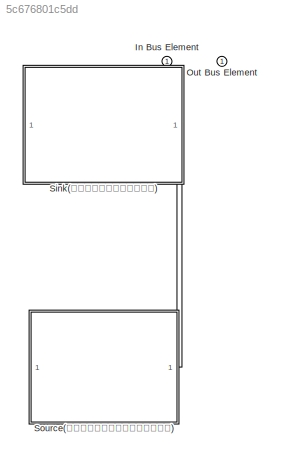
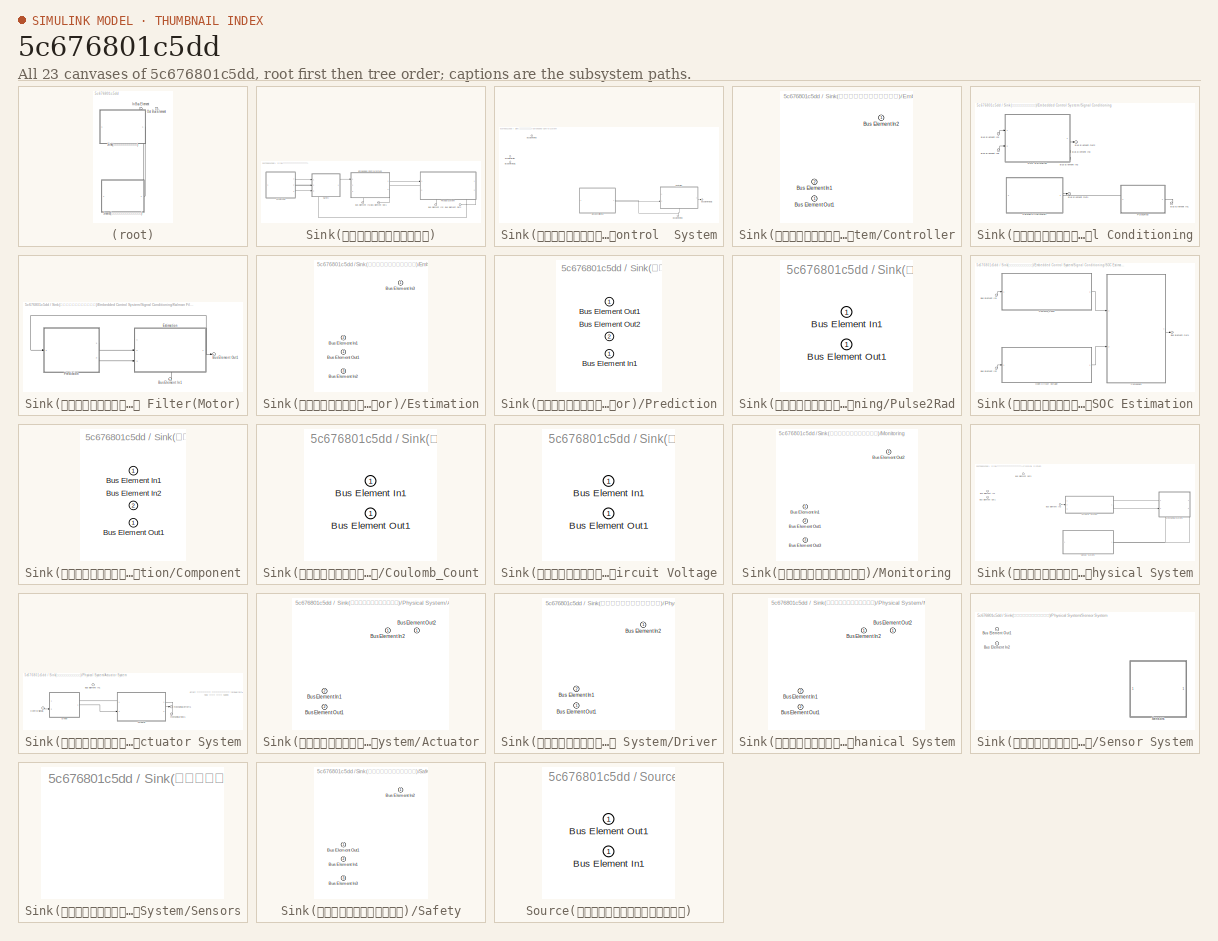
[diagram: thumbnail index - all 23 canvases of the model, root first then tree order]
MODEL slx_5c676801c5dd
KIND model
CONFIG AbsTol = auto
CONFIG EnableMultiTasking = off
CONFIG FixedStep = auto
CONFIG MaxStep = auto
CONFIG MinStep = auto
CONFIG RelTol = 1e-3
CONFIG SampleTimeConstraint = Unconstrained
CONFIG SolverName = VariableStepAuto
CONFIG StartTime = 0.0
CONFIG StopTime = 10.0
BLOCK [Inport] In Bus Element
BLOCK [Outport] Out Bus Element
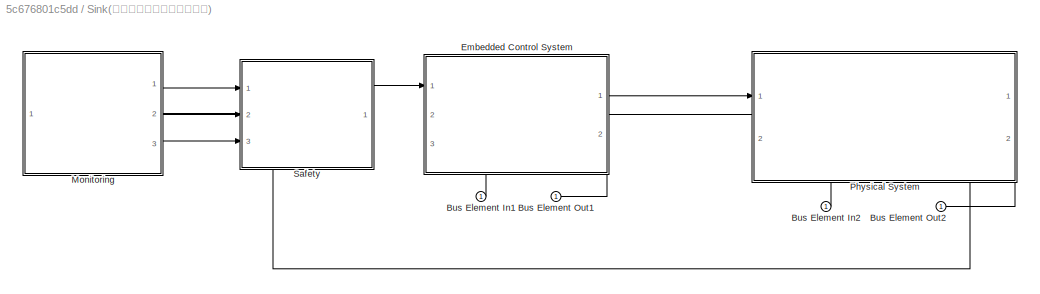
BLOCK [SubSystem] Sink(ดูดพลังงานมา)
  PortSchema = {"entries":[{"content":{"headerSize":26,"margin":15,"minimumSpacing":25,"sides":[{"content":{"connectorIds":[]},"type":"ConnectorPlacement.EquallySpacedRectSide","uuid":"92879829-3325-4e99-8cb7-644760838beb"},{"content":{"connectorIds":[],"side":"RIGHT"},"type":"ConnectorPlacement.EquallySpacedRectSide","uuid":"7f28acab-39b7-45d1-ae7e-3b59846b890e"},{"content":{"connectorIds":[],"side":"TOP"},"typ...<+433ch>
  Ports = [1, 1]
  RequestExecContextInheritance = off
BLOCK [Inport] Sink(ดูดพลังงานมา)/Bus Element In1
BLOCK [Inport] Sink(ดูดพลังงานมา)/Bus Element In2
BLOCK [Outport] Sink(ดูดพลังงานมา)/Bus Element Out1
BLOCK [Outport] Sink(ดูดพลังงานมา)/Bus Element Out2
BLOCK [SubSystem] Sink(ดูดพลังงานมา)/Embedded Control  System
  PortSchema = {"entries":[{"content":{"headerSize":26,"margin":15,"minimumSpacing":25,"sides":[{"content":{"connectorIds":["In1"]},"type":"ConnectorPlacement.EquallySpacedRectSide","uuid":"92879829-3325-4e99-8cb7-644760838beb"},{"content":{"connectorIds":["Out1","In2"],"side":"RIGHT"},"type":"ConnectorPlacement.EquallySpacedRectSide","uuid":"7f28acab-39b7-45d1-ae7e-3b59846b890e"},{"content":{"connectorIds":[],"...<+450ch>
  Ports = [3, 2]
  RequestExecContextInheritance = off
BLOCK [Inport] Sink(ดูดพลังงานมา)/Embedded Control  System/Bus Element In1
  Port = 3
BLOCK [Inport] Sink(ดูดพลังงานมา)/Embedded Control  System/Bus Element In2
  Port = 2
BLOCK [Inport] Sink(ดูดพลังงานมา)/Embedded Control  System/Bus Element In3
BLOCK [Outport] Sink(ดูดพลังงานมา)/Embedded Control  System/Bus Element Out1
  Port = 2
BLOCK [Outport] Sink(ดูดพลังงานมา)/Embedded Control  System/Bus Element Out2
BLOCK [SubSystem] Sink(ดูดพลังงานมา)/Embedded Control  System/Controller
  PortSchema = {"entries":[{"content":{"headerSize":26,"margin":15,"minimumSpacing":25,"sides":[{"content":{"connectorIds":["In2"]},"type":"ConnectorPlacement.EquallySpacedRectSide","uuid":"ceb52414-35d0-489d-844f-0240986ed89c"},{"content":{"connectorIds":["Out1"],"side":"RIGHT"},"type":"ConnectorPlacement.EquallySpacedRectSide","uuid":"3638cfe4-de14-450c-b813-3d39c139d6c7"},{"content":{"connectorIds":[],"side":...<+437ch>
  Ports = [2, 1]
  RequestExecContextInheritance = off
BLOCK [Inport] Sink(ดูดพลังงานมา)/Embedded Control  System/Controller/Bus Element In1
  Port = 2
BLOCK [Inport] Sink(ดูดพลังงานมา)/Embedded Control  System/Controller/Bus Element In2
BLOCK [Outport] Sink(ดูดพลังงานมา)/Embedded Control  System/Controller/Bus Element Out1
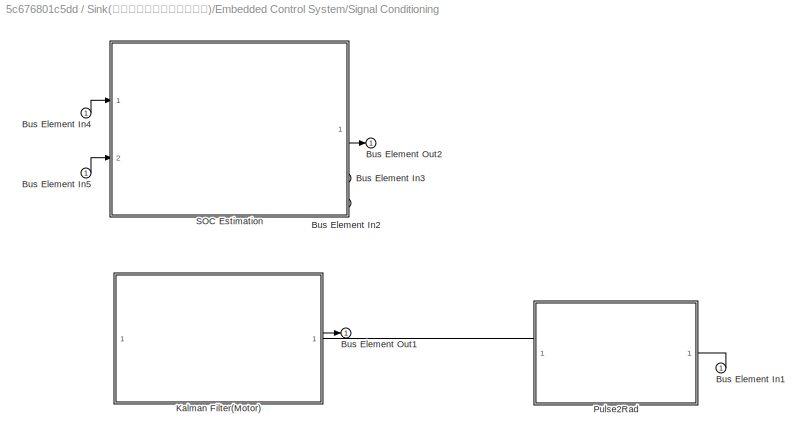
BLOCK [SubSystem] Sink(ดูดพลังงานมา)/Embedded Control  System/Signal Conditioning
  PortSchema = {"entries":[{"content":{"headerSize":26,"margin":15,"minimumSpacing":25,"sides":[{"content":{"connectorIds":[]},"type":"ConnectorPlacement.EquallySpacedRectSide","uuid":"ec34c04b-13ec-405c-8aad-0b7c99871b48"},{"content":{"connectorIds":["Out1","In1"],"side":"RIGHT"},"type":"ConnectorPlacement.EquallySpacedRectSide","uuid":"74d376a0-546b-4ab2-965b-dd49f4bea425"},{"content":{"connectorIds":[],"side"...<+289ch>
  Ports = [1, 1]
  RequestExecContextInheritance = off
BLOCK [Inport] Sink(ดูดพลังงานมา)/Embedded Control  System/Signal Conditioning/Bus Element In1
BLOCK [Inport] Sink(ดูดพลังงานมา)/Embedded Control  System/Signal Conditioning/Bus Element In2
BLOCK [Inport] Sink(ดูดพลังงานมา)/Embedded Control  System/Signal Conditioning/Bus Element In3
BLOCK [Inport] Sink(ดูดพลังงานมา)/Embedded Control  System/Signal Conditioning/Bus Element In4
BLOCK [Inport] Sink(ดูดพลังงานมา)/Embedded Control  System/Signal Conditioning/Bus Element In5
BLOCK [Outport] Sink(ดูดพลังงานมา)/Embedded Control  System/Signal Conditioning/Bus Element Out1
BLOCK [Outport] Sink(ดูดพลังงานมา)/Embedded Control  System/Signal Conditioning/Bus Element Out2
BLOCK [SubSystem] Sink(ดูดพลังงานมา)/Embedded Control  System/Signal Conditioning/Kalman Filter(Motor)
  PortSchema = {"entries":[{"content":{"headerSize":26,"margin":15,"minimumSpacing":25,"sides":[{"content":{"connectorIds":[]},"type":"ConnectorPlacement.EquallySpacedRectSide","uuid":"ec34c04b-13ec-405c-8aad-0b7c99871b48"},{"content":{"connectorIds":["Out1","In1"],"side":"RIGHT"},"type":"ConnectorPlacement.EquallySpacedRectSide","uuid":"74d376a0-546b-4ab2-965b-dd49f4bea425"},{"content":{"connectorIds":[],"side"...<+289ch>
  Ports = [1, 1]
  RequestExecContextInheritance = off
BLOCK [Inport] Sink(ดูดพลังงานมา)/Embedded Control  System/Signal Conditioning/Kalman Filter(Motor)/Bus Element In1
BLOCK [Outport] Sink(ดูดพลังงานมา)/Embedded Control  System/Signal Conditioning/Kalman Filter(Motor)/Bus Element Out1
BLOCK [SubSystem] Sink(ดูดพลังงานมา)/Embedded Control  System/Signal Conditioning/Kalman Filter(Motor)/Estimation
  PortSchema = {"entries":[{"content":{"headerSize":26,"margin":15,"minimumSpacing":25,"sides":[{"content":{"connectorIds":["In2","In3"]},"type":"ConnectorPlacement.EquallySpacedRectSide","uuid":"ec34c04b-13ec-405c-8aad-0b7c99871b48"},{"content":{"connectorIds":["Out1"],"side":"RIGHT"},"type":"ConnectorPlacement.EquallySpacedRectSide","uuid":"74d376a0-546b-4ab2-965b-dd49f4bea425"},{"content":{"connectorIds":[],"...<+443ch>
  Ports = [3, 1]
  RequestExecContextInheritance = off
BLOCK [Inport] Sink(ดูดพลังงานมา)/Embedded Control  System/Signal Conditioning/Kalman Filter(Motor)/Estimation/Bus Element In1
  Port = 2
BLOCK [Inport] Sink(ดูดพลังงานมา)/Embedded Control  System/Signal Conditioning/Kalman Filter(Motor)/Estimation/Bus Element In2
  Port = 3
BLOCK [Inport] Sink(ดูดพลังงานมา)/Embedded Control  System/Signal Conditioning/Kalman Filter(Motor)/Estimation/Bus Element In3
BLOCK [Outport] Sink(ดูดพลังงานมา)/Embedded Control  System/Signal Conditioning/Kalman Filter(Motor)/Estimation/Bus Element Out1
BLOCK [SubSystem] Sink(ดูดพลังงานมา)/Embedded Control  System/Signal Conditioning/Kalman Filter(Motor)/Prediction
  PortSchema = {"entries":[{"content":{"headerSize":26,"margin":15,"minimumSpacing":25,"sides":[{"content":{"connectorIds":["In1"]},"type":"ConnectorPlacement.EquallySpacedRectSide","uuid":"ec34c04b-13ec-405c-8aad-0b7c99871b48"},{"content":{"connectorIds":["Out1","Out2"],"side":"RIGHT"},"type":"ConnectorPlacement.EquallySpacedRectSide","uuid":"74d376a0-546b-4ab2-965b-dd49f4bea425"},{"content":{"connectorIds":[],...<+295ch>
  Ports = [1, 2]
  RequestExecContextInheritance = off
BLOCK [Inport] Sink(ดูดพลังงานมา)/Embedded Control  System/Signal Conditioning/Kalman Filter(Motor)/Prediction/Bus Element In1
BLOCK [Outport] Sink(ดูดพลังงานมา)/Embedded Control  System/Signal Conditioning/Kalman Filter(Motor)/Prediction/Bus Element Out1
BLOCK [Outport] Sink(ดูดพลังงานมา)/Embedded Control  System/Signal Conditioning/Kalman Filter(Motor)/Prediction/Bus Element Out2
  Port = 2
BLOCK [SubSystem] Sink(ดูดพลังงานมา)/Embedded Control  System/Signal Conditioning/Pulse2Rad
  PortSchema = {"entries":[{"content":{"headerSize":26,"margin":15,"minimumSpacing":25,"sides":[{"content":{"connectorIds":["Out1"]},"type":"ConnectorPlacement.EquallySpacedRectSide","uuid":"ec34c04b-13ec-405c-8aad-0b7c99871b48"},{"content":{"connectorIds":["In1"],"side":"RIGHT"},"type":"ConnectorPlacement.EquallySpacedRectSide","uuid":"74d376a0-546b-4ab2-965b-dd49f4bea425"},{"content":{"connectorIds":[],"side":...<+432ch>
  Ports = [1, 1]
  RequestExecContextInheritance = off
BLOCK [Inport] Sink(ดูดพลังงานมา)/Embedded Control  System/Signal Conditioning/Pulse2Rad/Bus Element In1
BLOCK [Outport] Sink(ดูดพลังงานมา)/Embedded Control  System/Signal Conditioning/Pulse2Rad/Bus Element Out1
BLOCK [SubSystem] Sink(ดูดพลังงานมา)/Embedded Control  System/Signal Conditioning/SOC Estimation
  PortSchema = {"entries":[{"content":{"headerSize":26,"margin":15,"minimumSpacing":25,"sides":[{"content":{"connectorIds":["In1","In2"]},"type":"ConnectorPlacement.EquallySpacedRectSide","uuid":"981ec522-52a0-4dbf-ac20-b0bdc6aa1afd"},{"content":{"connectorIds":["Out1"],"side":"RIGHT"},"type":"ConnectorPlacement.EquallySpacedRectSide","uuid":"9bffbeba-24b3-4025-8564-8c4b0e924e04"},{"content":{"connectorIds":[],"...<+294ch>
  Ports = [2, 1]
  RequestExecContextInheritance = off
BLOCK [Inport] Sink(ดูดพลังงานมา)/Embedded Control  System/Signal Conditioning/SOC Estimation/Bus Element In1
BLOCK [Inport] Sink(ดูดพลังงานมา)/Embedded Control  System/Signal Conditioning/SOC Estimation/Bus Element In2
  Port = 2
BLOCK [Outport] Sink(ดูดพลังงานมา)/Embedded Control  System/Signal Conditioning/SOC Estimation/Bus Element Out1
BLOCK [SubSystem] Sink(ดูดพลังงานมา)/Embedded Control  System/Signal Conditioning/SOC Estimation/Component
  PortSchema = {"entries":[{"content":{"headerSize":26,"margin":15,"minimumSpacing":25,"sides":[{"content":{"connectorIds":["In1","In2"]},"type":"ConnectorPlacement.EquallySpacedRectSide","uuid":"981ec522-52a0-4dbf-ac20-b0bdc6aa1afd"},{"content":{"connectorIds":["Out1"],"side":"RIGHT"},"type":"ConnectorPlacement.EquallySpacedRectSide","uuid":"9bffbeba-24b3-4025-8564-8c4b0e924e04"},{"content":{"connectorIds":[],"...<+294ch>
  Ports = [2, 1]
  RequestExecContextInheritance = off
BLOCK [Inport] Sink(ดูดพลังงานมา)/Embedded Control  System/Signal Conditioning/SOC Estimation/Component/Bus Element In1
BLOCK [Inport] Sink(ดูดพลังงานมา)/Embedded Control  System/Signal Conditioning/SOC Estimation/Component/Bus Element In2
  Port = 2
BLOCK [Outport] Sink(ดูดพลังงานมา)/Embedded Control  System/Signal Conditioning/SOC Estimation/Component/Bus Element Out1
BLOCK [SubSystem] Sink(ดูดพลังงานมา)/Embedded Control  System/Signal Conditioning/SOC Estimation/Coulomb_Count
  PortSchema = {"entries":[{"content":{"headerSize":26,"margin":15,"minimumSpacing":25,"sides":[{"content":{"connectorIds":["In1"]},"type":"ConnectorPlacement.EquallySpacedRectSide","uuid":"981ec522-52a0-4dbf-ac20-b0bdc6aa1afd"},{"content":{"connectorIds":["Out1"],"side":"RIGHT"},"type":"ConnectorPlacement.EquallySpacedRectSide","uuid":"9bffbeba-24b3-4025-8564-8c4b0e924e04"},{"content":{"connectorIds":[],"side":...<+288ch>
  Ports = [1, 1]
  RequestExecContextInheritance = off
BLOCK [Inport] Sink(ดูดพลังงานมา)/Embedded Control  System/Signal Conditioning/SOC Estimation/Coulomb_Count/Bus Element In1
BLOCK [Outport] Sink(ดูดพลังงานมา)/Embedded Control  System/Signal Conditioning/SOC Estimation/Coulomb_Count/Bus Element Out1
BLOCK [SubSystem] Sink(ดูดพลังงานมา)/Embedded Control  System/Signal Conditioning/SOC Estimation/Open Circuit Voltage
  PortSchema = {"entries":[{"content":{"headerSize":26,"margin":15,"minimumSpacing":25,"sides":[{"content":{"connectorIds":["In1"]},"type":"ConnectorPlacement.EquallySpacedRectSide","uuid":"981ec522-52a0-4dbf-ac20-b0bdc6aa1afd"},{"content":{"connectorIds":["Out1"],"side":"RIGHT"},"type":"ConnectorPlacement.EquallySpacedRectSide","uuid":"9bffbeba-24b3-4025-8564-8c4b0e924e04"},{"content":{"connectorIds":[],"side":...<+288ch>
  Ports = [1, 1]
  RequestExecContextInheritance = off
BLOCK [Inport] Sink(ดูดพลังงานมา)/Embedded Control  System/Signal Conditioning/SOC Estimation/Open Circuit Voltage/Bus Element In1
BLOCK [Outport] Sink(ดูดพลังงานมา)/Embedded Control  System/Signal Conditioning/SOC Estimation/Open Circuit Voltage/Bus Element Out1
BLOCK [SubSystem] Sink(ดูดพลังงานมา)/Monitoring
  PortSchema = {"entries":[{"content":{"headerSize":26,"margin":15,"minimumSpacing":25,"sides":[{"content":{"connectorIds":["In1"]},"type":"ConnectorPlacement.EquallySpacedRectSide","uuid":"92879829-3325-4e99-8cb7-644760838beb"},{"content":{"connectorIds":["Out1","Out2","Out3"],"side":"RIGHT"},"type":"ConnectorPlacement.EquallySpacedRectSide","uuid":"7f28acab-39b7-45d1-ae7e-3b59846b890e"},{"content":{"connectorI...<+302ch>
  Ports = [1, 3]
  RequestExecContextInheritance = off
BLOCK [Inport] Sink(ดูดพลังงานมา)/Monitoring/Bus Element In1
BLOCK [Outport] Sink(ดูดพลังงานมา)/Monitoring/Bus Element Out1
  Port = 2
BLOCK [Outport] Sink(ดูดพลังงานมา)/Monitoring/Bus Element Out2
BLOCK [Outport] Sink(ดูดพลังงานมา)/Monitoring/Bus Element Out3
  Port = 3
BLOCK [SubSystem] Sink(ดูดพลังงานมา)/Physical System
  PortSchema = {"entries":[{"content":{"headerSize":26,"margin":15,"minimumSpacing":25,"sides":[{"content":{"connectorIds":["In1","Out1"]},"type":"ConnectorPlacement.EquallySpacedRectSide","uuid":"92879829-3325-4e99-8cb7-644760838beb"},{"content":{"connectorIds":[],"side":"RIGHT"},"type":"ConnectorPlacement.EquallySpacedRectSide","uuid":"7f28acab-39b7-45d1-ae7e-3b59846b890e"},{"content":{"connectorIds":[],"side"...<+445ch>
  Ports = [2, 2]
  RequestExecContextInheritance = off
BLOCK [SubSystem] Sink(ดูดพลังงานมา)/Physical System/Actuator System
  PortSchema = {"entries":[{"content":{"headerSize":26,"margin":15,"minimumSpacing":25,"sides":[{"content":{"connectorIds":["In2","In3"]},"type":"ConnectorPlacement.EquallySpacedRectSide","uuid":"f68f48cd-d951-4f9c-827f-388e43e3aa01"},{"content":{"connectorIds":["Out1","In1"],"side":"RIGHT"},"type":"ConnectorPlacement.EquallySpacedRectSide","uuid":"e5e3824f-74cc-4079-8d6d-75ff73bcf254"},{"content":{"connectorIds...<+300ch>
  Ports = [3, 1]
  RequestExecContextInheritance = off
BLOCK [SubSystem] Sink(ดูดพลังงานมา)/Physical System/Actuator System/Actuator
  PortSchema = {"entries":[{"content":{"headerSize":26,"margin":15,"minimumSpacing":25,"sides":[{"content":{"connectorIds":["In2","Out2"]},"type":"ConnectorPlacement.EquallySpacedRectSide","uuid":"92879829-3325-4e99-8cb7-644760838beb"},{"content":{"connectorIds":["Out1","In1"],"side":"RIGHT"},"type":"ConnectorPlacement.EquallySpacedRectSide","uuid":"7f28acab-39b7-45d1-ae7e-3b59846b890e"},{"content":{"connectorId...<+301ch>
  Ports = [2, 2]
  RequestExecContextInheritance = off
BLOCK [Inport] Sink(ดูดพลังงานมา)/Physical System/Actuator System/Actuator/Bus Element In1
  Port = 2
BLOCK [Inport] Sink(ดูดพลังงานมา)/Physical System/Actuator System/Actuator/Bus Element In2
BLOCK [Outport] Sink(ดูดพลังงานมา)/Physical System/Actuator System/Actuator/Bus Element Out1
  Port = 2
BLOCK [Outport] Sink(ดูดพลังงานมา)/Physical System/Actuator System/Actuator/Bus Element Out2
BLOCK [Inport] Sink(ดูดพลังงานมา)/Physical System/Actuator System/Bus Element In1
BLOCK [Inport] Sink(ดูดพลังงานมา)/Physical System/Actuator System/Control Signal1
  Port = 2
BLOCK [SubSystem] Sink(ดูดพลังงานมา)/Physical System/Actuator System/Driver
  PortSchema = {"entries":[{"content":{"headerSize":26,"margin":15,"minimumSpacing":25,"sides":[{"content":{"connectorIds":["In2"]},"type":"ConnectorPlacement.EquallySpacedRectSide","uuid":"92879829-3325-4e99-8cb7-644760838beb"},{"content":{"connectorIds":["Out1","In1"],"side":"RIGHT"},"type":"ConnectorPlacement.EquallySpacedRectSide","uuid":"7f28acab-39b7-45d1-ae7e-3b59846b890e"},{"content":{"connectorIds":[],"...<+294ch>
  Ports = [2, 1]
  RequestExecContextInheritance = off
BLOCK [Inport] Sink(ดูดพลังงานมา)/Physical System/Actuator System/Driver/Bus Element In1
  Port = 2
BLOCK [Inport] Sink(ดูดพลังงานมา)/Physical System/Actuator System/Driver/Bus Element In2
BLOCK [Outport] Sink(ดูดพลังงานมา)/Physical System/Actuator System/Driver/Bus Element Out1
BLOCK [Outport] Sink(ดูดพลังงานมา)/Physical System/Actuator System/mechanical effort1
BLOCK [Inport] Sink(ดูดพลังงานมา)/Physical System/Actuator System/mechanical flow1
  Port = 3
BLOCK [Inport] Sink(ดูดพลังงานมา)/Physical System/Bus Element In1
  Port = 2
BLOCK [Inport] Sink(ดูดพลังงานมา)/Physical System/Bus Element In2
BLOCK [Outport] Sink(ดูดพลังงานมา)/Physical System/Bus Element Out1
  Port = 2
BLOCK [Outport] Sink(ดูดพลังงานมา)/Physical System/Bus Element Out3
BLOCK [SubSystem] Sink(ดูดพลังงานมา)/Physical System/Mechanical System
  PortSchema = {"entries":[{"content":{"headerSize":26,"margin":15,"minimumSpacing":25,"sides":[{"content":{"connectorIds":["In2","Out2"]},"type":"ConnectorPlacement.EquallySpacedRectSide","uuid":"92879829-3325-4e99-8cb7-644760838beb"},{"content":{"connectorIds":[],"side":"RIGHT"},"type":"ConnectorPlacement.EquallySpacedRectSide","uuid":"7f28acab-39b7-45d1-ae7e-3b59846b890e"},{"content":{"connectorIds":[],"side"...<+445ch>
  Ports = [2, 2]
  RequestExecContextInheritance = off
BLOCK [Inport] Sink(ดูดพลังงานมา)/Physical System/Mechanical System/Bus Element In1
  Port = 2
BLOCK [Inport] Sink(ดูดพลังงานมา)/Physical System/Mechanical System/Bus Element In2
BLOCK [Outport] Sink(ดูดพลังงานมา)/Physical System/Mechanical System/Bus Element Out1
  Port = 2
BLOCK [Outport] Sink(ดูดพลังงานมา)/Physical System/Mechanical System/Bus Element Out2
BLOCK [SubSystem] Sink(ดูดพลังงานมา)/Physical System/Sensor System
  PortSchema = {"entries":[{"content":{"headerSize":26,"margin":15,"minimumSpacing":25,"sides":[{"content":{"connectorIds":[]},"type":"ConnectorPlacement.EquallySpacedRectSide","uuid":"92879829-3325-4e99-8cb7-644760838beb"},{"content":{"connectorIds":["Out1","In1"],"side":"RIGHT"},"type":"ConnectorPlacement.EquallySpacedRectSide","uuid":"7f28acab-39b7-45d1-ae7e-3b59846b890e"},{"content":{"connectorIds":[],"side"...<+289ch>
  Ports = [1, 1]
  RequestExecContextInheritance = off
BLOCK [Inport] Sink(ดูดพลังงานมา)/Physical System/Sensor System/Bus Element In2
BLOCK [Outport] Sink(ดูดพลังงานมา)/Physical System/Sensor System/Bus Element Out1
BLOCK [SubSystem] Sink(ดูดพลังงานมา)/Physical System/Sensor System/Sensors
  PortSchema = {"entries":[{"content":{"headerSize":26,"margin":15,"minimumSpacing":25,"sides":[{"content":{"connectorIds":[]},"type":"ConnectorPlacement.EquallySpacedRectSide","uuid":"92879829-3325-4e99-8cb7-644760838beb"},{"content":{"connectorIds":[],"side":"RIGHT"},"type":"ConnectorPlacement.EquallySpacedRectSide","uuid":"7f28acab-39b7-45d1-ae7e-3b59846b890e"},{"content":{"connectorIds":[],"side":"TOP"},"typ...<+277ch>
  Ports = []
  RequestExecContextInheritance = off
BLOCK [SubSystem] Sink(ดูดพลังงานมา)/Safety
  PortSchema = {"entries":[{"content":{"headerSize":26,"margin":15,"minimumSpacing":25,"sides":[{"content":{"connectorIds":["In1","In2","In3"]},"type":"ConnectorPlacement.EquallySpacedRectSide","uuid":"a13b989b-550e-4f25-b61d-a17766de2304"},{"content":{"connectorIds":["Out1"],"side":"RIGHT"},"type":"ConnectorPlacement.EquallySpacedRectSide","uuid":"f38355a8-6cda-4e40-929d-de76f2792fd9"},{"content":{"connectorIds...<+300ch>
  Ports = [3, 1]
  RequestExecContextInheritance = off
BLOCK [Inport] Sink(ดูดพลังงานมา)/Safety/Bus Element In1
  Port = 2
BLOCK [Inport] Sink(ดูดพลังงานมา)/Safety/Bus Element In2
BLOCK [Inport] Sink(ดูดพลังงานมา)/Safety/Bus Element In3
  Port = 3
BLOCK [Outport] Sink(ดูดพลังงานมา)/Safety/Bus Element Out1
BLOCK [SubSystem] Source(ปล่อยพลังงานให้)
  PortSchema = {"entries":[{"content":{"headerSize":26,"margin":15,"minimumSpacing":25,"sides":[{"content":{"connectorIds":[]},"type":"ConnectorPlacement.EquallySpacedRectSide","uuid":"92879829-3325-4e99-8cb7-644760838beb"},{"content":{"connectorIds":[],"side":"RIGHT"},"type":"ConnectorPlacement.EquallySpacedRectSide","uuid":"7f28acab-39b7-45d1-ae7e-3b59846b890e"},{"content":{"connectorIds":["Out1","In1"],"side"...<+289ch>
  Ports = [1, 1]
  RequestExecContextInheritance = off
BLOCK [Inport] Source(ปล่อยพลังงานให้)/Bus Element In1
BLOCK [Outport] Source(ปล่อยพลังงานให้)/Bus Element Out1
ANNOTATION Sink(ดูดพลังงานมา)/Physical System/Actuator System: effort หมายถึง อาจจะเป็น torque/force flow คือ พวก speed
LINE Sink(ดูดพลังงานมา)/Bus Element In1:1 -> Sink(ดูดพลังงานมา)/Embedded Control  System:3
LINE Sink(ดูดพลังงานมา)/Bus Element In2:1 -> Sink(ดูดพลังงานมา)/Physical System:2
NET Sink(ดูดพลังงานมา)/Embedded Control  System/Bus Element In2:1 -> Sink(ดูดพลังงานมา)/Embedded Control  System/Controller:1, Sink(ดูดพลังงานมา)/Embedded Control  System/Signal Conditioning:1
LINE Sink(ดูดพลังงานมา)/Embedded Control  System/Controller:1 -> Sink(ดูดพลังงานมา)/Embedded Control  System/Bus Element Out2:1
LINE Sink(ดูดพลังงานมา)/Embedded Control  System/Signal Conditioning/Bus Element In1:1 -> Sink(ดูดพลังงานมา)/Embedded Control  System/Signal Conditioning/Pulse2Rad:1
LINE Sink(ดูดพลังงานมา)/Embedded Control  System/Signal Conditioning/Bus Element In4:1 -> Sink(ดูดพลังงานมา)/Embedded Control  System/Signal Conditioning/SOC Estimation:1
LINE Sink(ดูดพลังงานมา)/Embedded Control  System/Signal Conditioning/Bus Element In5:1 -> Sink(ดูดพลังงานมา)/Embedded Control  System/Signal Conditioning/SOC Estimation:2
LINE Sink(ดูดพลังงานมา)/Embedded Control  System/Signal Conditioning/Kalman Filter(Motor)/Bus Element In1:1 -> Sink(ดูดพลังงานมา)/Embedded Control  System/Signal Conditioning/Kalman Filter(Motor)/Estimation:1
NET Sink(ดูดพลังงานมา)/Embedded Control  System/Signal Conditioning/Kalman Filter(Motor)/Estimation:1 -> Sink(ดูดพลังงานมา)/Embedded Control  System/Signal Conditioning/Kalman Filter(Motor)/Bus Element Out1:1, Sink(ดูดพลังงานมา)/Embedded Control  System/Signal Conditioning/Kalman Filter(Motor)/Prediction:1
LINE Sink(ดูดพลังงานมา)/Embedded Control  System/Signal Conditioning/Kalman Filter(Motor)/Prediction:1 -> Sink(ดูดพลังงานมา)/Embedded Control  System/Signal Conditioning/Kalman Filter(Motor)/Estimation:2
LINE Sink(ดูดพลังงานมา)/Embedded Control  System/Signal Conditioning/Kalman Filter(Motor)/Prediction:2 -> Sink(ดูดพลังงานมา)/Embedded Control  System/Signal Conditioning/Kalman Filter(Motor)/Estimation:3
LINE Sink(ดูดพลังงานมา)/Embedded Control  System/Signal Conditioning/Kalman Filter(Motor):1 -> Sink(ดูดพลังงานมา)/Embedded Control  System/Signal Conditioning/Bus Element Out1:1
LINE Sink(ดูดพลังงานมา)/Embedded Control  System/Signal Conditioning/Pulse2Rad:1 -> Sink(ดูดพลังงานมา)/Embedded Control  System/Signal Conditioning/Kalman Filter(Motor):1
LINE Sink(ดูดพลังงานมา)/Embedded Control  System/Signal Conditioning/SOC Estimation/Bus Element In1:1 -> Sink(ดูดพลังงานมา)/Embedded Control  System/Signal Conditioning/SOC Estimation/Coulomb_Count:1
LINE Sink(ดูดพลังงานมา)/Embedded Control  System/Signal Conditioning/SOC Estimation/Bus Element In2:1 -> Sink(ดูดพลังงานมา)/Embedded Control  System/Signal Conditioning/SOC Estimation/Open Circuit Voltage:1
LINE Sink(ดูดพลังงานมา)/Embedded Control  System/Signal Conditioning/SOC Estimation/Component:1 -> Sink(ดูดพลังงานมา)/Embedded Control  System/Signal Conditioning/SOC Estimation/Bus Element Out1:1
LINE Sink(ดูดพลังงานมา)/Embedded Control  System/Signal Conditioning/SOC Estimation/Coulomb_Count:1 -> Sink(ดูดพลังงานมา)/Embedded Control  System/Signal Conditioning/SOC Estimation/Component:1
LINE Sink(ดูดพลังงานมา)/Embedded Control  System/Signal Conditioning/SOC Estimation/Open Circuit Voltage:1 -> Sink(ดูดพลังงานมา)/Embedded Control  System/Signal Conditioning/SOC Estimation/Component:2
LINE Sink(ดูดพลังงานมา)/Embedded Control  System/Signal Conditioning/SOC Estimation:1 -> Sink(ดูดพลังงานมา)/Embedded Control  System/Signal Conditioning/Bus Element Out2:1
LINE Sink(ดูดพลังงานมา)/Embedded Control  System/Signal Conditioning:1 -> Sink(ดูดพลังงานมา)/Embedded Control  System/Controller:2
LINE Sink(ดูดพลังงานมา)/Embedded Control  System:1 -> Sink(ดูดพลังงานมา)/Physical System:1
LINE Sink(ดูดพลังงานมา)/Embedded Control  System:2 -> Sink(ดูดพลังงานมา)/Bus Element Out1:1
LINE Sink(ดูดพลังงานมา)/Monitoring:1 -> Sink(ดูดพลังงานมา)/Safety:1
LINE Sink(ดูดพลังงานมา)/Monitoring:2 -> Sink(ดูดพลังงานมา)/Safety:2
LINE Sink(ดูดพลังงานมา)/Monitoring:3 -> Sink(ดูดพลังงานมา)/Safety:3
LINE Sink(ดูดพลังงานมา)/Physical System/Actuator System/Actuator:1 -> Sink(ดูดพลังงานมา)/Physical System/Actuator System/mechanical effort1:1
LINE Sink(ดูดพลังงานมา)/Physical System/Actuator System/Actuator:2 -> Sink(ดูดพลังงานมา)/Physical System/Actuator System/Driver:1
LINE Sink(ดูดพลังงานมา)/Physical System/Actuator System/Control Signal1:1 -> Sink(ดูดพลังงานมา)/Physical System/Actuator System/Driver:2
LINE Sink(ดูดพลังงานมา)/Physical System/Actuator System/Driver:1 -> Sink(ดูดพลังงานมา)/Physical System/Actuator System/Actuator:2
LINE Sink(ดูดพลังงานมา)/Physical System/Actuator System/mechanical flow1:1 -> Sink(ดูดพลังงานมา)/Physical System/Actuator System/Actuator:1
LINE Sink(ดูดพลังงานมา)/Physical System/Actuator System:1 -> Sink(ดูดพลังงานมา)/Physical System/Mechanical System:2
LINE Sink(ดูดพลังงานมา)/Physical System/Bus Element In2:1 -> Sink(ดูดพลังงานมา)/Physical System/Actuator System:2
LINE Sink(ดูดพลังงานมา)/Physical System/Mechanical System:1 -> Sink(ดูดพลังงานมา)/Physical System/Sensor System:1
LINE Sink(ดูดพลังงานมา)/Physical System/Mechanical System:2 -> Sink(ดูดพลังงานมา)/Physical System/Actuator System:1
LINE Sink(ดูดพลังงานมา)/Physical System/Sensor System:1 -> Sink(ดูดพลังงานมา)/Physical System/Mechanical System:1
NET Sink(ดูดพลังงานมา)/Physical System:1 -> Sink(ดูดพลังงานมา)/Embedded Control  System:2, Sink(ดูดพลังงานมา)/Monitoring:1
LINE Sink(ดูดพลังงานมา)/Physical System:2 -> Sink(ดูดพลังงานมา)/Bus Element Out2:1
LINE Sink(ดูดพลังงานมา)/Safety:1 -> Sink(ดูดพลังงานมา)/Embedded Control  System:1
LINE Sink(ดูดพลังงานมา):1 -> Source(ปล่อยพลังงานให้):1
LINE Source(ปล่อยพลังงานให้):1 -> Sink(ดูดพลังงานมา):1
note: NET lines group one-source signal fan-out (src -> all destinations, sorted); 1:1 wires keep LINE
